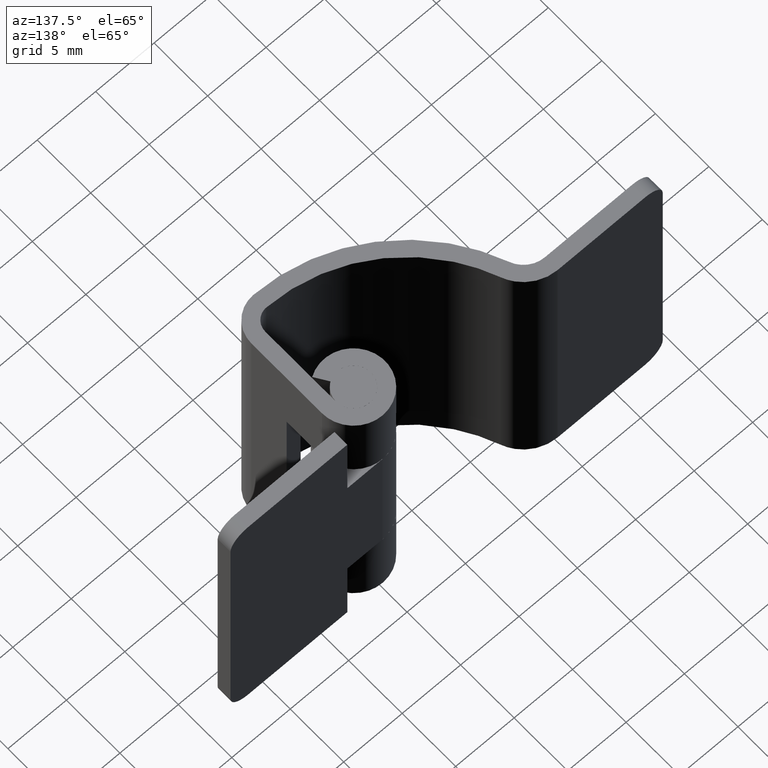
[diagram: clean part render]
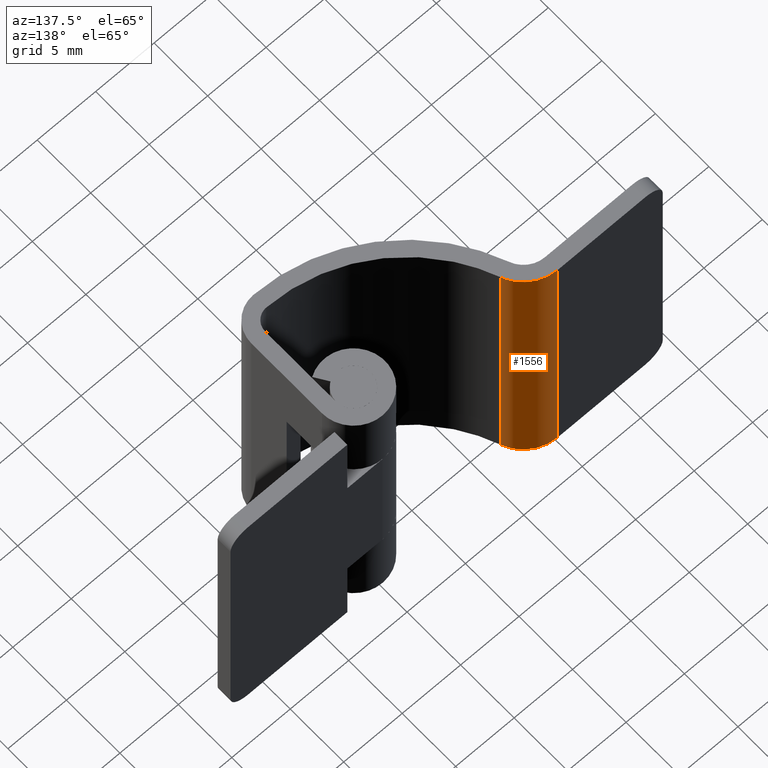
[diagram: same view with one face highlighted and labeled with its STEP entity id]
A machine part, auxiliary view. The second image highlights one B-rep face of the part: STEP entity #1556.
In plain terms, the highlighted face is a freeform B-spline surface patch.
Its self-contained STEP definition (entity closure, byte-faithful):
#1151=CARTESIAN_POINT('',(-15.000003765196301,2.700001000000000,25.000006999999950));
#1152=VERTEX_POINT('',#1151);
#1289=CARTESIAN_POINT('',(-12.004567762194521,0.625773246913583,25.000006999999950));
#1290=VERTEX_POINT('',#1289);
#1304=CARTESIAN_POINT('',(-15.000003765196301,2.700001000000000,25.000006999999950));
#1305=CARTESIAN_POINT('',(-12.784123070958465,2.700000999999999,25.000006999999947));
#1306=CARTESIAN_POINT('',(-12.004567762194540,0.625773246913576,25.000006999999950));
#1314=(BOUNDED_CURVE()B_SPLINE_CURVE(2,(#1304,#1305,#1306),.UNSPECIFIED.,.F.,.U.)CURVE()GEOMETRIC_REPRESENTATION_ITEM()QUASI_UNIFORM_CURVE()RATIONAL_B_SPLINE_CURVE((1.0,0.822132540154108,1.0))REPRESENTATION_ITEM(''));
#1315=EDGE_CURVE('',#1152,#1290,#1314,.T.);
#1333=CARTESIAN_POINT('',(-15.000003765196301,2.700001000000000,0.0));
#1334=VERTEX_POINT('',#1333);
#1340=CARTESIAN_POINT('',(-12.004567762194521,0.625773246913583,0.0));
#1341=VERTEX_POINT('',#1340);
#1342=CARTESIAN_POINT('',(-15.000003765196301,2.700001000000000,0.0));
#1343=CARTESIAN_POINT('',(-12.784123070958465,2.700000999999999,0.0));
#1344=CARTESIAN_POINT('',(-12.004567762194540,0.625773246913576,0.0));
#1352=(BOUNDED_CURVE()B_SPLINE_CURVE(2,(#1342,#1343,#1344),.UNSPECIFIED.,.F.,.U.)CURVE()GEOMETRIC_REPRESENTATION_ITEM()QUASI_UNIFORM_CURVE()RATIONAL_B_SPLINE_CURVE((1.0,0.822132540154108,1.0))REPRESENTATION_ITEM(''));
#1353=EDGE_CURVE('',#1334,#1341,#1352,.T.);
#1524=CARTESIAN_POINT('',(-15.000003765196301,2.700001000000000,0.0));
#1525=CARTESIAN_POINT('',(-15.000003765196301,2.700001000000000,25.000006999999950));
#1526=QUASI_UNIFORM_CURVE('',1,(#1524,#1525),.UNSPECIFIED.,.F.,.U.);
#1527=EDGE_CURVE('',#1334,#1152,#1526,.T.);
#1532=CARTESIAN_POINT('',(-15.117134425603171,2.697856595300176,-0.625000174999999));
#1533=CARTESIAN_POINT('',(-15.117134425603171,2.697856595300176,25.640632179374951));
#1534=CARTESIAN_POINT('',(-12.674351183436805,2.787330558666838,-0.625000174999999));
#1535=CARTESIAN_POINT('',(-12.674351183436805,2.787330558666838,25.640632179374951));
#1536=CARTESIAN_POINT('',(-11.945544060369219,0.454084807423455,-0.625000174999999));
#1537=CARTESIAN_POINT('',(-11.945544060369219,0.454084807423455,25.640632179374951));
#1545=(BOUNDED_SURFACE()B_SPLINE_SURFACE(1,2,((#1532,#1534,#1536),(#1533,#1535,#1537)),.UNSPECIFIED.,.F.,.F.,.U.)B_SPLINE_SURFACE_WITH_KNOTS((2,2),(3,3),(0.0,26.265632354374951),(0.0,4.329500302043885),.UNSPECIFIED.)GEOMETRIC_REPRESENTATION_ITEM()RATIONAL_B_SPLINE_SURFACE(((1.0,0.791749621213967,0.992654150069527),(1.0,0.791749621213967,0.992654150069527)))REPRESENTATION_ITEM('')SURFACE());
#1546=ORIENTED_EDGE('',*,*,#1315,.T.);
#1547=CARTESIAN_POINT('',(-12.004567762194521,0.625773246913583,0.0));
#1548=CARTESIAN_POINT('',(-12.004567762194521,0.625773246913583,25.000006999999950));
#1549=QUASI_UNIFORM_CURVE('',1,(#1547,#1548),.UNSPECIFIED.,.F.,.U.);
#1550=EDGE_CURVE('',#1341,#1290,#1549,.T.);
#1551=ORIENTED_EDGE('',*,*,#1550,.F.);
#1552=ORIENTED_EDGE('',*,*,#1353,.F.);
#1553=ORIENTED_EDGE('',*,*,#1527,.T.);
#1554=EDGE_LOOP('',(#1546,#1551,#1552,#1553));
#1555=FACE_OUTER_BOUND('',#1554,.T.);
#1556=ADVANCED_FACE('',(#1555),#1545,.T.);